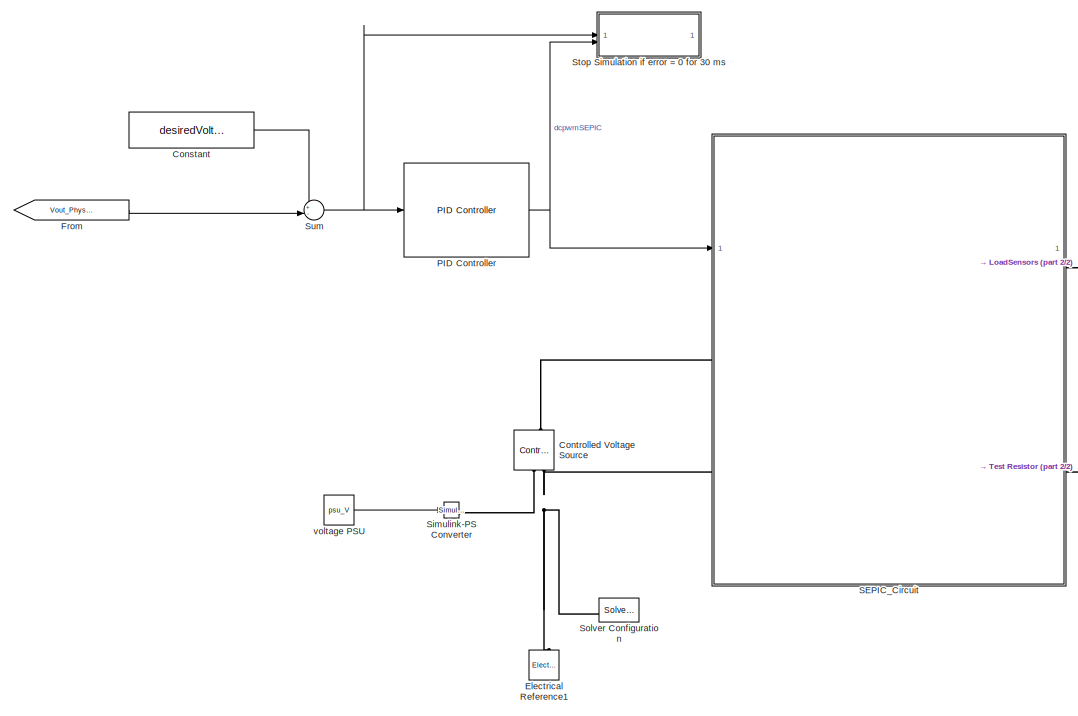
[diagram: root canvas - part 1/2, left side, full height]
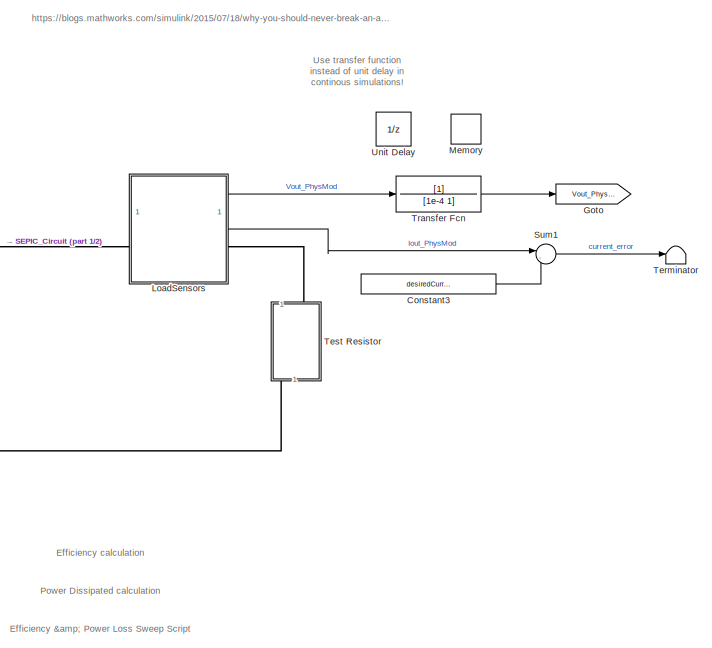
[diagram: root canvas - part 2/2, right side, full height]
MODEL slx_99616801c257
KIND model
CONFIG AbsTol = auto
CONFIG EnableMultiTasking = off
CONFIG FixedStep = auto
CONFIG MaxStep = auto
CONFIG MinStep = auto
CONFIG RelTol = 1e-3
CONFIG SampleTimeConstraint = Unconstrained
CONFIG SolverName = ode23t
CONFIG StartTime = 0.0
CONFIG StopTime = 2
BLOCK [Constant] Constant
  Value = desiredVoltage_Param
BLOCK [Constant] Constant3
  Value = desiredCurrent_Param
BLOCK [Reference] Controlled Voltage Source  REF=fl_lib/Electrical/Electrical Sources/Controlled Voltage
Source
  SourceBlock = fl_lib/Electrical/Electrical Sources/Controlled Voltage\nSource
  SourceType = Controlled Voltage\nSource
BLOCK [Reference] Electrical Reference1  REF=fl_lib/Electrical/Electrical Elements/Electrical Reference
  SourceBlock = fl_lib/Electrical/Electrical Elements/Electrical Reference
  SourceType = Electrical Reference
BLOCK [From] From
  GotoTag = Vout_PhysMod
BLOCK [Goto] Goto
  GotoTag = Vout_PhysMod
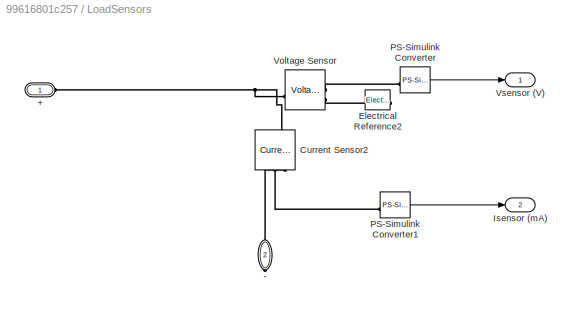
BLOCK [SubSystem] LoadSensors
BLOCK [PMIOPort] LoadSensors/+
  Side = Left
BLOCK [PMIOPort] LoadSensors/-
  NameLocation = left
  Port = 2
  Side = Right
BLOCK [Reference] LoadSensors/Current Sensor2  REF=fl_lib/Electrical/Electrical Sensors/Current Sensor
  NameLocation = left
  SourceBlock = fl_lib/Electrical/Electrical Sensors/Current Sensor
  SourceType = Current Sensor
BLOCK [Reference] LoadSensors/Electrical Reference2  REF=fl_lib/Electrical/Electrical Elements/Electrical Reference
  NameLocation = top
  SourceBlock = fl_lib/Electrical/Electrical Elements/Electrical Reference
  SourceType = Electrical Reference
BLOCK [Outport] LoadSensors/Isensor (mA)
  Port = 2
  Unit = mA
  VectorParamsAs1DForOutWhenUnconnected = off
BLOCK [Reference] LoadSensors/PS-Simulink Converter  REF=nesl_utility/PS-Simulink
Converter
  SourceBlock = nesl_utility/PS-Simulink\nConverter
  SourceType = PS-Simulink\nConverter
BLOCK [Reference] LoadSensors/PS-Simulink Converter1  REF=nesl_utility/PS-Simulink
Converter
  SourceBlock = nesl_utility/PS-Simulink\nConverter
  SourceType = PS-Simulink\nConverter
BLOCK [Reference] LoadSensors/Voltage Sensor  REF=fl_lib/Electrical/Electrical Sensors/Voltage Sensor
  SourceBlock = fl_lib/Electrical/Electrical Sensors/Voltage Sensor
  SourceType = Voltage Sensor
BLOCK [Outport] LoadSensors/Vsensor (V)
  Unit = V
  VectorParamsAs1DForOutWhenUnconnected = off
BLOCK [Memory] Memory
  Commented = on
BLOCK [Reference] PID Controller  REF=slpidlib/PID Controller
  SourceBlock = slpidlib/PID Controller
  SourceType = PID 1dof
BLOCK [SubSystem] SEPIC_Circuit
  ReferencedSubsystem = SEPIC_Circuit
  VariantControl = Var_Converter==2
BLOCK [Reference] Simulink-PS Converter  REF=nesl_utility/Simulink-PS
Converter
  SourceBlock = nesl_utility/Simulink-PS\nConverter
  SourceType = Simulink-PS\nConverter
BLOCK [Reference] Solver Configuration  REF=nesl_utility/Solver
Configuration
  SourceBlock = nesl_utility/Solver\nConfiguration
  SourceType = Solver\nConfiguration
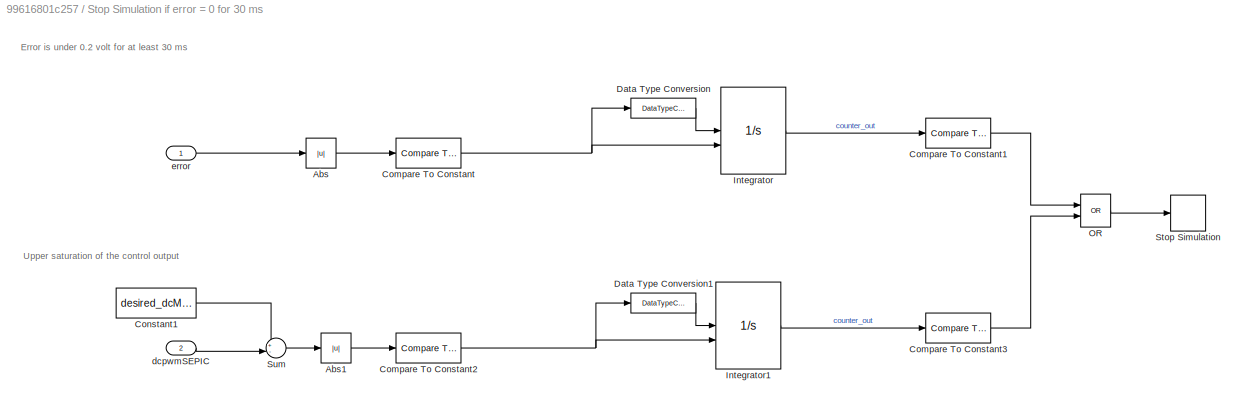
BLOCK [SubSystem] Stop Simulation if error = 0 for 30 ms
  NameLocation = right
BLOCK [Abs] Stop Simulation if error = 0 for 30 ms/Abs
  SaturateOnIntegerOverflow = off
BLOCK [Abs] Stop Simulation if error = 0 for 30 ms/Abs1
  SaturateOnIntegerOverflow = off
  ZeroCross = off
BLOCK [Reference] Stop Simulation if error = 0 for 30 ms/Compare To Constant  REF=simulink/Logic and Bit
Operations/Compare
To Constant
  SourceBlock = simulink/Logic and Bit\nOperations/Compare\nTo Constant
  SourceType = Compare To Constant
BLOCK [Reference] Stop Simulation if error = 0 for 30 ms/Compare To Constant1  REF=simulink/Logic and Bit
Operations/Compare
To Constant
  SourceBlock = simulink/Logic and Bit\nOperations/Compare\nTo Constant
  SourceType = Compare To Constant
BLOCK [Reference] Stop Simulation if error = 0 for 30 ms/Compare To Constant2  REF=simulink/Logic and Bit
Operations/Compare
To Constant
  SourceBlock = simulink/Logic and Bit\nOperations/Compare\nTo Constant
  SourceType = Compare To Constant
BLOCK [Reference] Stop Simulation if error = 0 for 30 ms/Compare To Constant3  REF=simulink/Logic and Bit
Operations/Compare
To Constant
  SourceBlock = simulink/Logic and Bit\nOperations/Compare\nTo Constant
  SourceType = Compare To Constant
BLOCK [Constant] Stop Simulation if error = 0 for 30 ms/Constant1
  Value = desired_dcMax
BLOCK [DataTypeConversion] Stop Simulation if error = 0 for 30 ms/Data Type Conversion
  OutDataTypeStr = double
  RndMeth = Floor
  SaturateOnIntegerOverflow = off
BLOCK [DataTypeConversion] Stop Simulation if error = 0 for 30 ms/Data Type Conversion1
  OutDataTypeStr = double
  RndMeth = Floor
  SaturateOnIntegerOverflow = off
BLOCK [Integrator] Stop Simulation if error = 0 for 30 ms/Integrator
  ExternalReset = rising
BLOCK [Integrator] Stop Simulation if error = 0 for 30 ms/Integrator1
  ExternalReset = rising
BLOCK [Logic] Stop Simulation if error = 0 for 30 ms/OR
  AllPortsSameDT = off
  Operator = OR
  OutDataTypeStr = boolean
BLOCK [Stop] Stop Simulation if error = 0 for 30 ms/Stop Simulation
BLOCK [Sum] Stop Simulation if error = 0 for 30 ms/Sum
  Inputs = +-|
BLOCK [Inport] Stop Simulation if error = 0 for 30 ms/dcpwmSEPIC
  Port = 2
BLOCK [Inport] Stop Simulation if error = 0 for 30 ms/error
BLOCK [Sum] Sum
  Inputs = +-|
BLOCK [Sum] Sum1
  Inputs = |-+
BLOCK [Terminator] Terminator
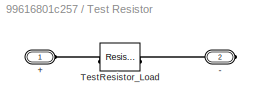
BLOCK [SubSystem] Test Resistor
  AttributesFormatString = Load resistance: %<R_load>
  NameLocation = left
  VariantControl = Resistor
BLOCK [PMIOPort] Test Resistor/+
  Side = Left
BLOCK [PMIOPort] Test Resistor/-
  Port = 2
  Side = Right
BLOCK [Reference] Test Resistor/TestResistor_Load  REF=ee_lib/Passive/Resistor
  SourceBlock = ee_lib/Passive/Resistor
  SourceType = Resistor
BLOCK [TransferFcn] Transfer Fcn
  Denominator = [1e-4 1]
BLOCK [UnitDelay] Unit Delay
  Commented = on
  HasFrameUpgradeWarning = on
  SampleTime = -1
BLOCK [Constant] voltage PSU
  OutDataTypeStr = double
  Value = psu_V
ANNOTATION (root): https://blogs.mathworks.com/simulink/2015/07/18/why-you-should-never-break-an-algebraic-loop-with-with-a-memory-block/
ANNOTATION (root): Efficiency & Power Loss Sweep Script
ANNOTATION (root): Efficiency calculation
ANNOTATION (root): Power Dissipated calculation
ANNOTATION (root): Use transfer function instead of unit delay in continous simulations!
ANNOTATION Stop Simulation if error = 0 for 30 ms: Error is under 0.2 volt for at least 30 ms
ANNOTATION Stop Simulation if error = 0 for 30 ms: Upper saturation of the control output
LINE Constant3:1 -> Sum1:2
LINE Constant:1 -> Sum:1
LINE From:1 -> Sum:2
LINE LoadSensors/PS-Simulink Converter1:1 -> LoadSensors/Isensor (mA):1
LINE LoadSensors/PS-Simulink Converter:1 -> LoadSensors/Vsensor (V):1
LINE LoadSensors:1 -> Transfer Fcn:1
LINE LoadSensors:2 -> Sum1:1
NET PID Controller:1 -> SEPIC_Circuit:1, Stop Simulation if error = 0 for 30 ms:2
LINE Stop Simulation if error = 0 for 30 ms/Abs1:1 -> Stop Simulation if error = 0 for 30 ms/Compare To Constant2:1
LINE Stop Simulation if error = 0 for 30 ms/Abs:1 -> Stop Simulation if error = 0 for 30 ms/Compare To Constant:1
LINE Stop Simulation if error = 0 for 30 ms/Compare To Constant1:1 -> Stop Simulation if error = 0 for 30 ms/OR:1
NET Stop Simulation if error = 0 for 30 ms/Compare To Constant2:1 -> Stop Simulation if error = 0 for 30 ms/Data Type Conversion1:1, Stop Simulation if error = 0 for 30 ms/Integrator1:2
LINE Stop Simulation if error = 0 for 30 ms/Compare To Constant3:1 -> Stop Simulation if error = 0 for 30 ms/OR:2
NET Stop Simulation if error = 0 for 30 ms/Compare To Constant:1 -> Stop Simulation if error = 0 for 30 ms/Data Type Conversion:1, Stop Simulation if error = 0 for 30 ms/Integrator:2
LINE Stop Simulation if error = 0 for 30 ms/Constant1:1 -> Stop Simulation if error = 0 for 30 ms/Sum:1
LINE Stop Simulation if error = 0 for 30 ms/Data Type Conversion1:1 -> Stop Simulation if error = 0 for 30 ms/Integrator1:1
LINE Stop Simulation if error = 0 for 30 ms/Data Type Conversion:1 -> Stop Simulation if error = 0 for 30 ms/Integrator:1
LINE Stop Simulation if error = 0 for 30 ms/Integrator1:1 -> Stop Simulation if error = 0 for 30 ms/Compare To Constant3:1
LINE Stop Simulation if error = 0 for 30 ms/Integrator:1 -> Stop Simulation if error = 0 for 30 ms/Compare To Constant1:1
LINE Stop Simulation if error = 0 for 30 ms/OR:1 -> Stop Simulation if error = 0 for 30 ms/Stop Simulation:1
LINE Stop Simulation if error = 0 for 30 ms/Sum:1 -> Stop Simulation if error = 0 for 30 ms/Abs1:1
LINE Stop Simulation if error = 0 for 30 ms/dcpwmSEPIC:1 -> Stop Simulation if error = 0 for 30 ms/Sum:2
LINE Stop Simulation if error = 0 for 30 ms/error:1 -> Stop Simulation if error = 0 for 30 ms/Abs:1
LINE Sum1:1 -> Terminator:1
NET Sum:1 -> PID Controller:1, Stop Simulation if error = 0 for 30 ms:1
LINE Transfer Fcn:1 -> Goto:1
LINE voltage PSU:1 -> Simulink-PS Converter:1
PLINE Controlled Voltage Source:LConn1 -- SEPIC_Circuit:LConn1
PLINE Controlled Voltage Source:RConn1 -- Simulink-PS Converter:RConn1
PNET net1: Controlled Voltage Source:RConn2 -- Electrical Reference1:LConn1 -- SEPIC_Circuit:LConn2 -- Solver Configuration:RConn1
PNET net2: LoadSensors/+:RConn1 -- LoadSensors/Current Sensor2:LConn1 -- LoadSensors/Voltage Sensor:LConn1
PLINE LoadSensors/-:RConn1 -- LoadSensors/Current Sensor2:RConn2
PLINE LoadSensors/Current Sensor2:RConn1 -- LoadSensors/PS-Simulink Converter1:LConn1
PLINE LoadSensors/Electrical Reference2:LConn1 -- LoadSensors/Voltage Sensor:RConn2
PLINE LoadSensors/PS-Simulink Converter:LConn1 -- LoadSensors/Voltage Sensor:RConn1
PLINE LoadSensors:LConn1 -- SEPIC_Circuit:RConn1
PLINE LoadSensors:RConn1 -- Test Resistor:LConn1
PLINE SEPIC_Circuit:RConn2 -- Test Resistor:RConn1
PLINE Test Resistor/+:RConn1 -- Test Resistor/TestResistor_Load:LConn1
PLINE Test Resistor/-:RConn1 -- Test Resistor/TestResistor_Load:RConn1
note: NET lines group one-source signal fan-out (src -> all destinations, sorted); 1:1 wires keep LINE; PNET lines group multi-terminal physical nets as a canonical sorted terminal list (undirected conserving connections); 2-terminal nets keep the pairwise PLINE form
